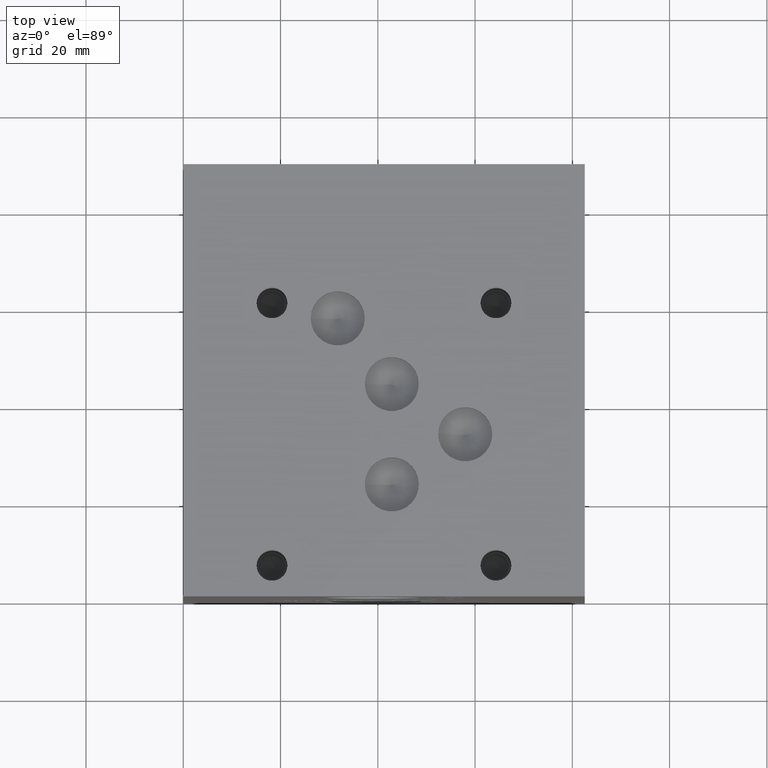
[diagram: clean part render]
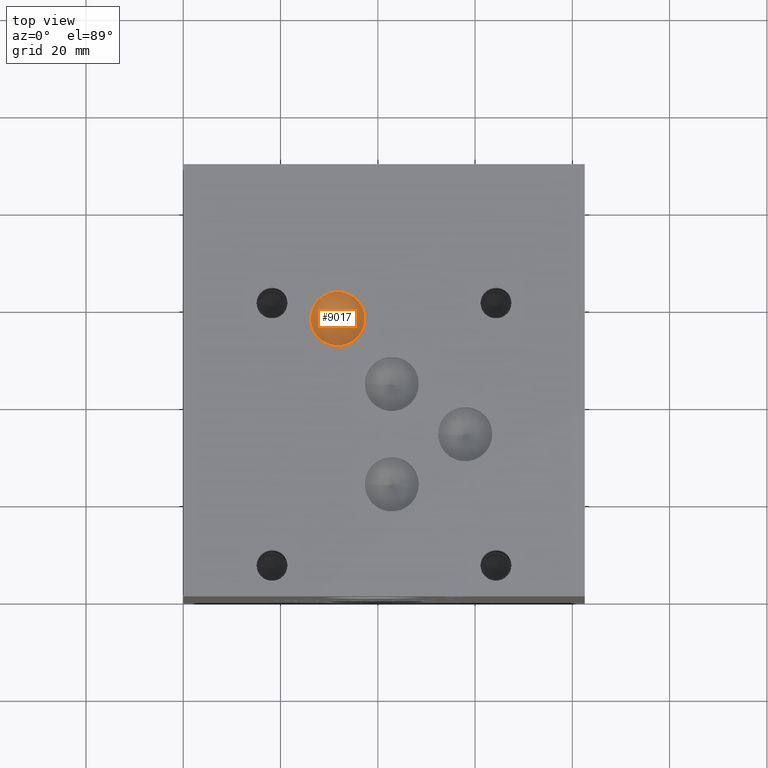
[diagram: same view with one face highlighted and labeled with its STEP entity id]
A machine part, top view. The second image highlights one B-rep face of the part: STEP entity #9017.
In plain terms, the highlighted conical surface has half-angle 60 deg.
Its self-contained STEP definition (entity closure, byte-faithful):
#57=CONICAL_SURFACE('',#9447,2.7813,1.0471975511966);
#138=CIRCLE('',#9448,5.5626);
#139=CIRCLE('',#9449,5.5626);
#973=FACE_OUTER_BOUND('',#1492,.T.);
#1492=EDGE_LOOP('',(#7936,#7937,#7938,#7939));
#2395=LINE('',#15272,#3278);
#3278=VECTOR('',#11160,2.7813);
#4335=VERTEX_POINT('',#15268);
#4336=VERTEX_POINT('',#15269);
#4337=VERTEX_POINT('',#15271);
#5557=EDGE_CURVE('',#4335,#4336,#138,.T.);
#5558=EDGE_CURVE('',#4336,#4337,#2395,.T.);
#5559=EDGE_CURVE('',#4336,#4335,#139,.T.);
#7936=ORIENTED_EDGE('',*,*,#5557,.T.);
#7937=ORIENTED_EDGE('',*,*,#5558,.T.);
#7938=ORIENTED_EDGE('',*,*,#5558,.F.);
#7939=ORIENTED_EDGE('',*,*,#5559,.T.);
#9017=ADVANCED_FACE('',(#973),#57,.F.);
#9447=AXIS2_PLACEMENT_3D('',#15267,#11156,#11157);
#9448=AXIS2_PLACEMENT_3D('',#15270,#11158,#11159);
#9449=AXIS2_PLACEMENT_3D('',#15273,#11161,#11162);
#11156=DIRECTION('center_axis',(0.,0.,1.));
#11157=DIRECTION('ref_axis',(1.,0.,0.));
#11158=DIRECTION('center_axis',(0.,0.,1.));
#11159=DIRECTION('ref_axis',(1.,0.,0.));
#11160=DIRECTION('',(0.866025403784439,1.06057523872491E-16,-0.5));
#11161=DIRECTION('center_axis',(0.,0.,1.));
#11162=DIRECTION('ref_axis',(1.,0.,0.));
#15267=CARTESIAN_POINT('Origin',(31.75,57.15,84.0826456963029));
#15268=CARTESIAN_POINT('',(37.3126,57.15,85.68843));
#15269=CARTESIAN_POINT('',(26.1874,57.15,85.68843));
#15270=CARTESIAN_POINT('Origin',(31.75,57.15,85.68843));
#15271=CARTESIAN_POINT('',(31.75,57.15,82.4768613926058));
#15272=CARTESIAN_POINT('',(28.9687,57.15,84.0826456963029));
#15273=CARTESIAN_POINT('Origin',(31.75,57.15,85.68843));